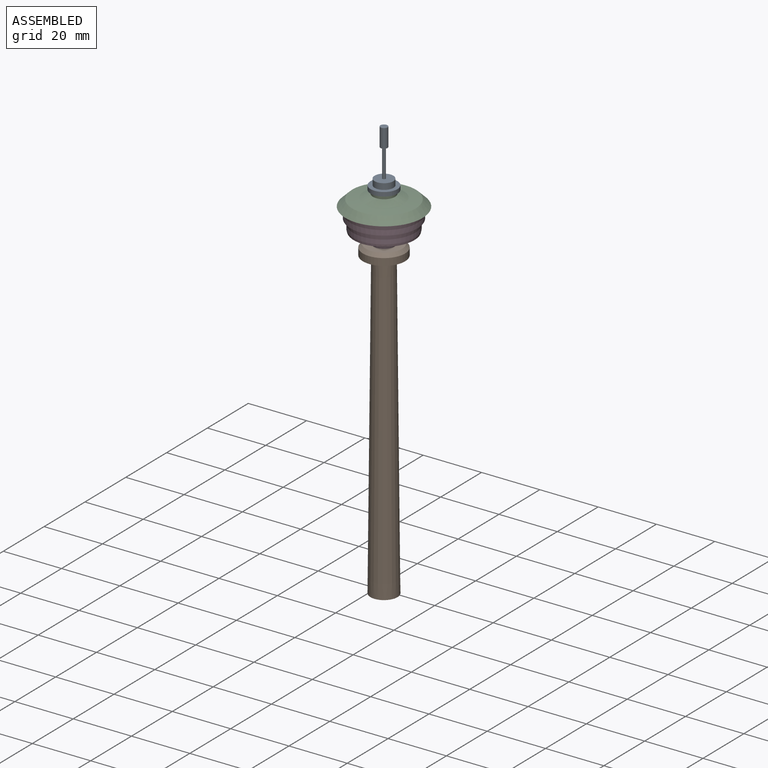
[diagram: assembled view]
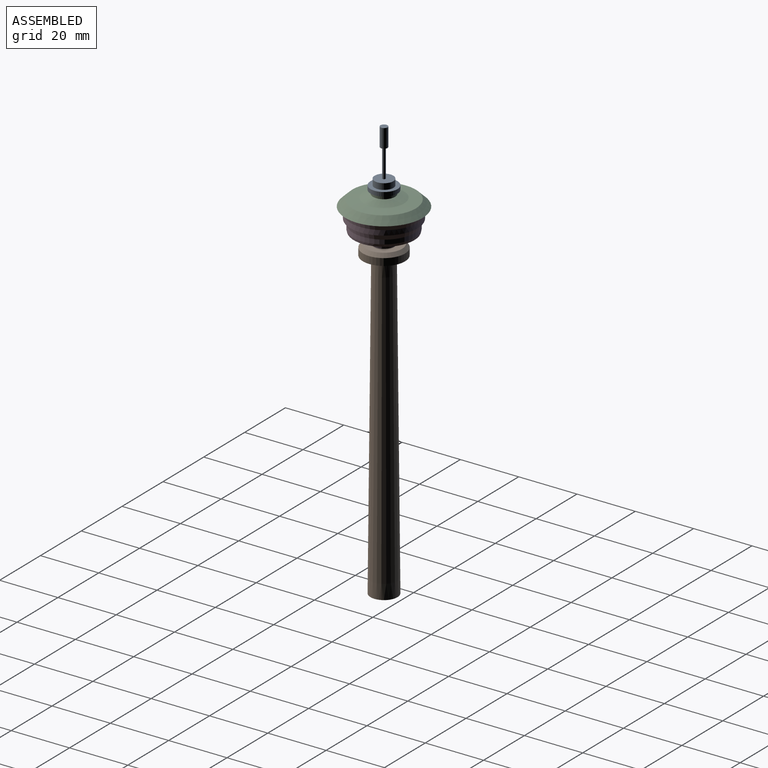
[diagram: assembled view, second angle]
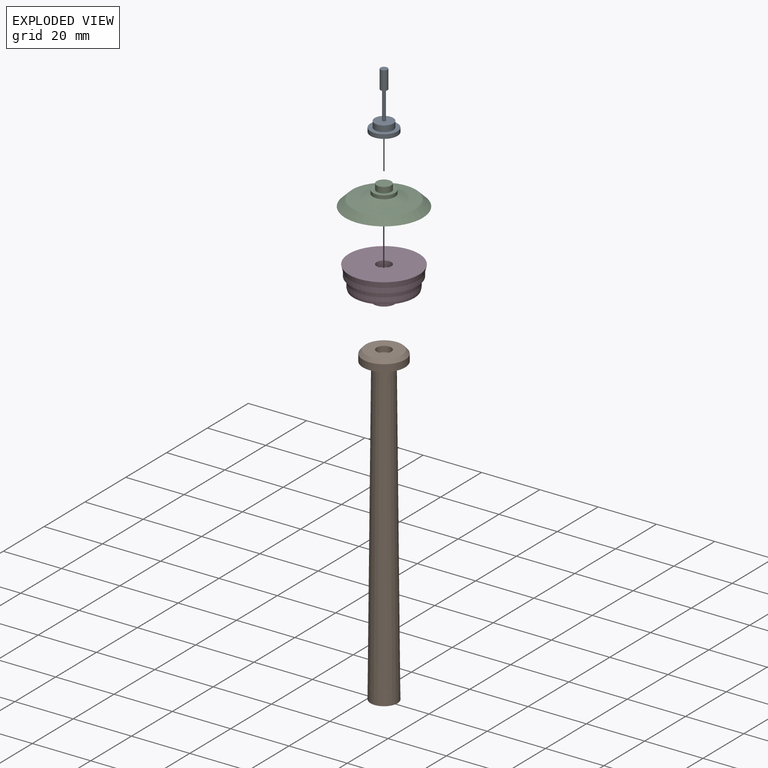
[diagram: exploded view]
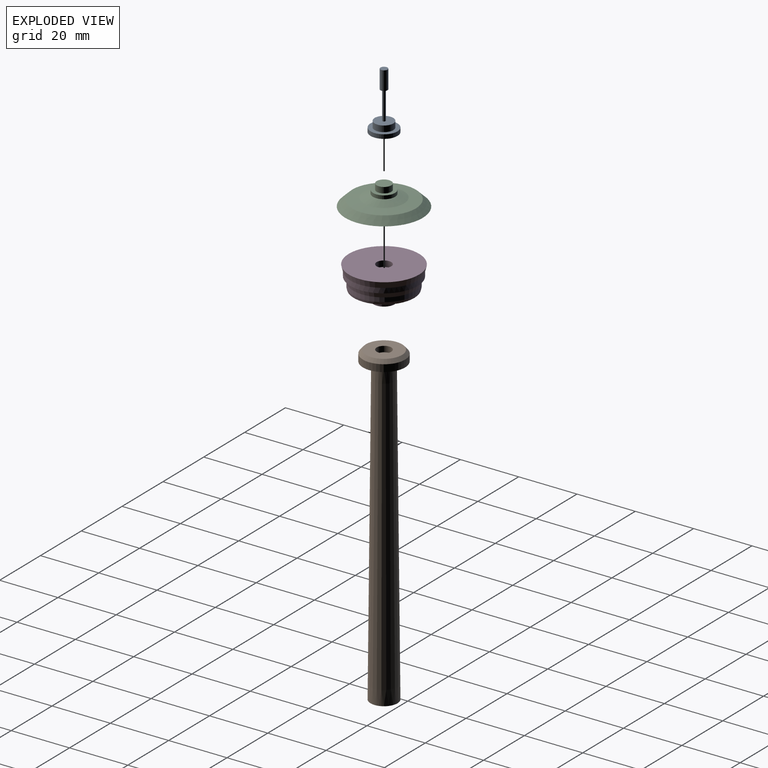
[diagram: exploded view, second angle]
ASSEMBLY  parts=4 mates=3
PART A: 11 faces, bbox 9.3x9.3x19.6 mm
  f0: plane 9.26x9.26mm, normal (0,0,-1), area 46mm2, adj f8,f9
  f1: plane 2.44x2.44mm, normal (0,0,1), area 4.7mm2, adj f2
  f2: cylinder r=1.22mm len=6.4mm, axis (0,0,-1), area 49mm2, adj f1,f3
  f3: plane 2.44x2.44mm, normal (0,0,-1), area 3.8mm2, adj f2,f4
  f4: cylinder r=0.53mm len=9.77mm, axis (0,0,-1), area 32.5mm2, adj f3,f5
  f5: plane 6.42x6.42mm, normal (0,0,1), area 31.5mm2, adj f4,f6
  f6: cylinder r=3.21mm len=6.42mm, axis (0,0,-1), area 41.7mm2, adj f5,f7
  f7: plane 9.26x9.26mm, normal (0,0,1), area 34.9mm2, adj f6,f8
  f8: cylinder r=4.63mm len=9.26mm, axis (0,0,-1), area 41.2mm2, adj f0,f7
  f9: cylinder r=2.6mm len=5.2mm, axis (0,0,-1), area 32.7mm2, adj f0,f10
  f10: plane 5.2x5.2mm, normal (0,0,-1), area 21.2mm2, adj f9
PART B: 8 faces, bbox 14.5x14.5x108.5 mm
  f0: cone r=4.63mm half-angle=89.4deg, axis (0,0,1), area 67.3mm2, adj f1
  f1: cone r=3.62mm half-angle=0.6deg, axis (0,0,-1), area 2708.3mm2, adj f0,f2
  f2: cone r=7.23mm half-angle=84.9deg, axis (0,0,1), area 123.6mm2, adj f1,f3
  f3: cylinder r=7.23mm len=14.46mm, axis (0,0,-1), area 110.3mm2, adj f2,f4
  f4: cone r=6.2mm half-angle=41deg, axis (0,0,-1), area 66.2mm2, adj f3,f5
  f5: plane 12.4x12.4mm, normal (0,0,1), area 101.2mm2, adj f4,f6
  f6: cylinder r=2.5mm len=5mm, axis (0,0,1), area 31.4mm2, adj f5,f7
  f7: plane 5x5mm, normal (0,0,1), area 19.6mm2, adj f6
PART C: 10 faces, bbox 26.6x26.6x7.2 mm
  f0: cone r=10.91mm half-angle=45.9deg, axis (0,0,-1), area 251.2mm2, adj f1,f2
  f1: plane 26.57x26.57mm, normal (0,0,-1), area 534.7mm2, adj f0,f6
  f2: cone r=6.93mm half-angle=82.9deg, axis (0,0,-1), area 224.9mm2, adj f0,f3
  f3: cone r=3.78mm half-angle=69.3deg, axis (0,0,-1), area 113mm2, adj f2,f4
  f4: cylinder r=3.78mm len=7.57mm, axis (0,0,-1), area 28.9mm2, adj f3,f5
  f5: plane 7.57x7.57mm, normal (0,0,1), area 25.4mm2, adj f4,f8
  f6: cylinder r=2.5mm len=5mm, axis (0,0,-1), area 31.4mm2, adj f1,f7
  f7: plane 5x5mm, normal (0,0,-1), area 19.6mm2, adj f6
  f8: cylinder r=2.5mm len=5mm, axis (0,0,-1), area 31.4mm2, adj f5,f9
  f9: plane 5x5mm, normal (0,0,1), area 19.6mm2, adj f8
PART D: 15 faces, bbox 24.1x24.1x11.5 mm
  f0: cone r=11.02mm half-angle=14deg, axis (0,0,1), area 118.6mm2, adj f1,f4
  f1: plane 23.12x23.12mm, normal (0,0,-1), area 38mm2, adj f0,f2
  f2: cylinder r=11.56mm len=23.12mm, axis (0,0,-1), area 122.4mm2, adj f1,f3
  f3: cone r=12.06mm half-angle=14deg, axis (0,0,1), area 151.6mm2, adj f2,f10
  f4: cylinder r=10.6mm len=21.2mm, axis (0,0,-1), area 98.9mm2, adj f0,f5
  f5: cone r=10.6mm half-angle=14deg, axis (0,0,1), area 56.6mm2, adj f4,f6
  f6: cone r=10.39mm half-angle=77.1deg, axis (0,0,1), area 217.6mm2, adj f5,f7
  f7: cone r=6.36mm half-angle=58.5deg, axis (0,0,1), area 96.4mm2, adj f6,f8
  f8: cone r=3.78mm half-angle=7.1deg, axis (0,0,1), area 30.2mm2, adj f7,f9
  f9: plane 7.25x7.25mm, normal (0,0,-1), area 21.6mm2, adj f8,f11
  f10: plane 24.11x24.11mm, normal (0,0,1), area 437mm2, adj f3,f13
  f11: cylinder r=2.5mm len=5mm, axis (0,0,-1), area 31.4mm2, adj f9,f12
  f12: plane 5x5mm, normal (0,0,-1), area 19.6mm2, adj f11
  f13: cylinder r=2.5mm len=5mm, axis (0,0,1), area 31.4mm2, adj f10,f14
  f14: plane 5x5mm, normal (0,0,1), area 19.6mm2, adj f13
PLACE A t=(-13.09,-3.3,10.13)mm
PLACE B t=(-13.09,-3.3,35.26)mm
PLACE C t=(-13.09,-3.3,15.44)mm
PLACE D t=(-13.09,-3.3,22.55)mm
MATE fastened C.f0 <-> D.f11  axis (0,0,-1) through (-13.09,-3.3,72.08)mm
MATE fastened D.f0 <-> B.f0  axis (0,0,-1) through (-13.09,-3.3,60.61)mm
MATE fastened A.f2 <-> C.f8  axis (0,0,-1) through (-13.09,-3.3,79.28)mm
